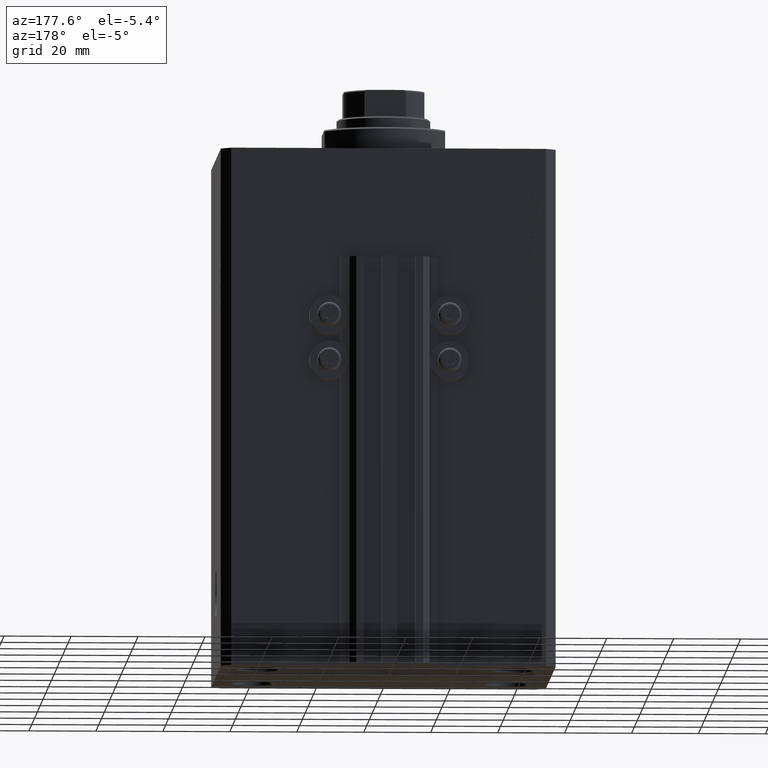
[diagram: clean part render]
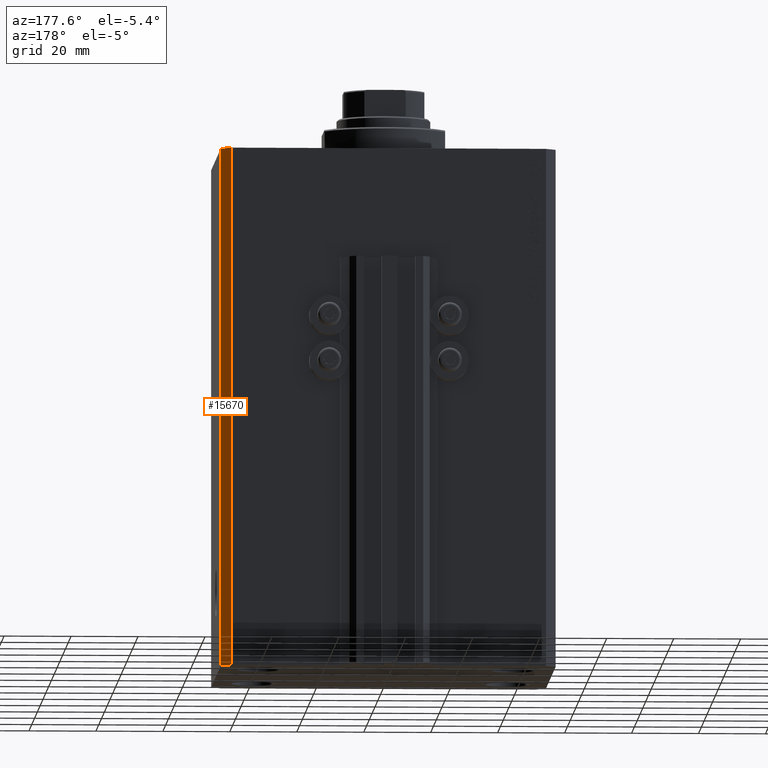
[diagram: same view with one face highlighted and labeled with its STEP entity id]
A machine part, auxiliary view. The second image highlights one B-rep face of the part: STEP entity #15670.
In plain terms, the highlighted planar face has unit normal (0.7071, 0.7071, 0).
Its self-contained STEP definition (entity closure, byte-faithful):
#1330 = LINE ( 'NONE', #38110, #24267 ) ;
#1430 = VECTOR ( 'NONE', #46332, 1000.000000000000000 ) ;
#2159 = LINE ( 'NONE', #13142, #29961 ) ;
#2972 = FACE_OUTER_BOUND ( 'NONE', #17660, .T. ) ;
#3569 = CARTESIAN_POINT ( 'NONE',  ( 47.00000000000056843, 37.49999999999999289, 0.000000000000000000 ) ) ;
#5395 = DIRECTION ( 'NONE',  ( -0.7071067811865361374, 0.7071067811865588970, 0.000000000000000000 ) ) ;
#6917 = EDGE_CURVE ( 'NONE', #17802, #28943, #41814, .T. ) ;
#9446 = ORIENTED_EDGE ( 'NONE', *, *, #18640, .F. ) ;
#9799 = VECTOR ( 'NONE', #36518, 1000.000000000000000 ) ;
#10725 = AXIS2_PLACEMENT_3D ( 'NONE', #15618, #18962, #36631 ) ;
#10971 = ORIENTED_EDGE ( 'NONE', *, *, #29945, .T. ) ;
#13142 = CARTESIAN_POINT ( 'NONE',  ( 50.00000000000051870, 34.49999999999995026, 0.000000000000000000 ) ) ;
#13718 = ORIENTED_EDGE ( 'NONE', *, *, #6917, .T. ) ;
#13830 = LINE ( 'NONE', #35809, #9799 ) ;
#15618 = CARTESIAN_POINT ( 'NONE',  ( 50.00000000000051870, 34.49999999999995026, -155.0000000000000000 ) ) ;
#15670 = ADVANCED_FACE ( 'NONE', ( #2972 ), #18489, .T. ) ;
#17660 = EDGE_LOOP ( 'NONE', ( #9446, #43612, #10971, #13718 ) ) ;
#17802 = VERTEX_POINT ( 'NONE', #19076 ) ;
#18489 = PLANE ( 'NONE',  #10725 ) ;
#18640 = EDGE_CURVE ( 'NONE', #22584, #28943, #2159, .T. ) ;
#18962 = DIRECTION ( 'NONE',  ( 0.7071067811865588970, 0.7071067811865361374, -0.000000000000000000 ) ) ;
#19076 = CARTESIAN_POINT ( 'NONE',  ( 47.00000000000056843, 37.49999999999999289, -155.0000000000000000 ) ) ;
#22584 = VERTEX_POINT ( 'NONE', #31290 ) ;
#24267 = VECTOR ( 'NONE', #5395, 1000.000000000000114 ) ;
#24675 = VERTEX_POINT ( 'NONE', #36639 ) ;
#28943 = VERTEX_POINT ( 'NONE', #3569 ) ;
#29945 = EDGE_CURVE ( 'NONE', #24675, #17802, #1330, .T. ) ;
#29961 = VECTOR ( 'NONE', #45848, 1000.000000000000114 ) ;
#30277 = EDGE_CURVE ( 'NONE', #24675, #22584, #13830, .T. ) ;
#31290 = CARTESIAN_POINT ( 'NONE',  ( 50.00000000000051870, 34.49999999999995026, 0.000000000000000000 ) ) ;
#35599 = CARTESIAN_POINT ( 'NONE',  ( 47.00000000000056843, 37.49999999999999289, -155.0000000000000000 ) ) ;
#35809 = CARTESIAN_POINT ( 'NONE',  ( 50.00000000000051870, 34.49999999999995026, -155.0000000000000000 ) ) ;
#36518 = DIRECTION ( 'NONE',  ( 0.000000000000000000, 0.000000000000000000, 1.000000000000000000 ) ) ;
#36631 = DIRECTION ( 'NONE',  ( -0.7071067811865361374, 0.7071067811865588970, 0.000000000000000000 ) ) ;
#36639 = CARTESIAN_POINT ( 'NONE',  ( 50.00000000000051870, 34.49999999999995026, -155.0000000000000000 ) ) ;
#38110 = CARTESIAN_POINT ( 'NONE',  ( 50.00000000000051870, 34.49999999999995026, -155.0000000000000000 ) ) ;
#41814 = LINE ( 'NONE', #35599, #1430 ) ;
#43612 = ORIENTED_EDGE ( 'NONE', *, *, #30277, .F. ) ;
#45848 = DIRECTION ( 'NONE',  ( -0.7071067811865361374, 0.7071067811865588970, 0.000000000000000000 ) ) ;
#46332 = DIRECTION ( 'NONE',  ( 0.000000000000000000, 0.000000000000000000, 1.000000000000000000 ) ) ;